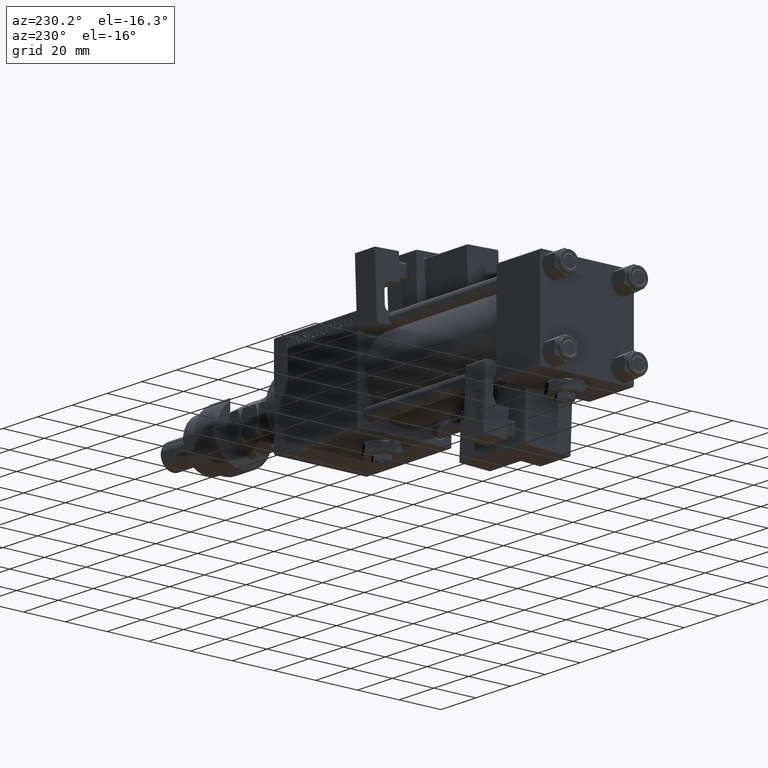
[diagram: clean part render]
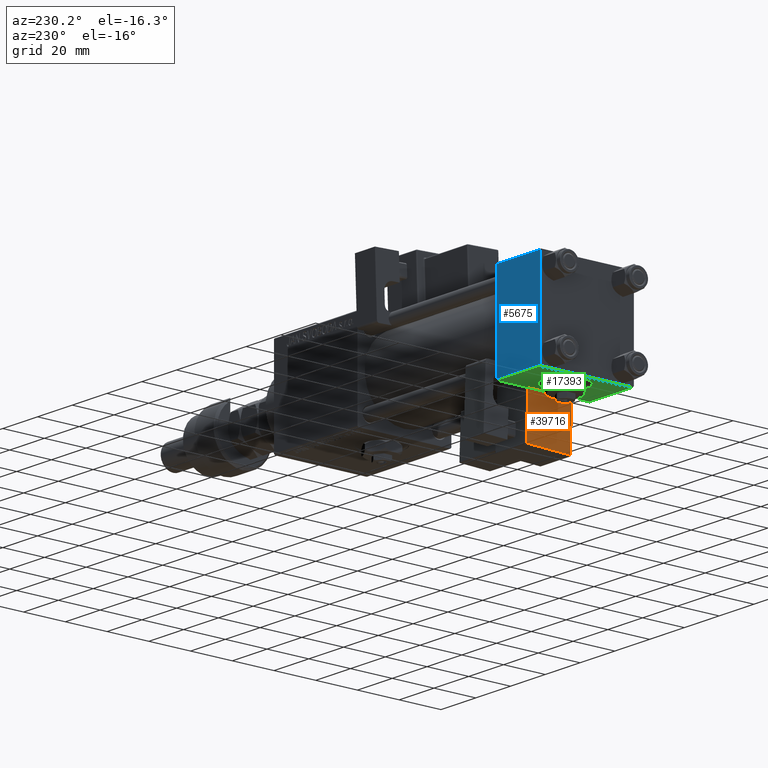
[diagram: same view with three faces highlighted in distinct colors, each labeled with its STEP entity id]
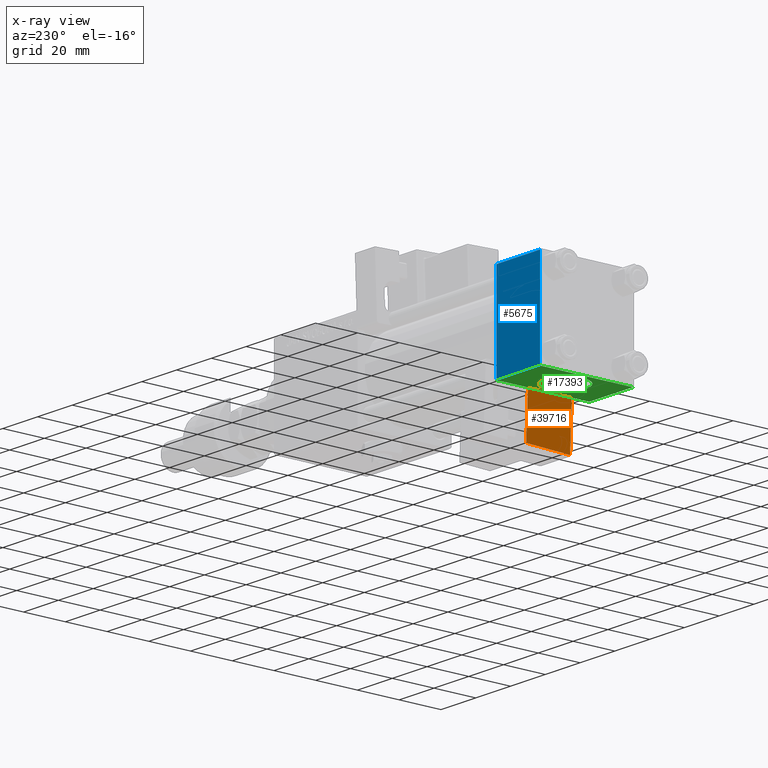
[diagram: x-ray of the same camera — body ghosted, the three highlighted faces saturated]
A machine part, auxiliary view with three faces highlighted in distinct colors.
The next image is the same camera in x-ray (body ghosted, the three faces saturated) — at least one of them is partly hidden behind the body in this view.
Their STEP definitions:

[orange] entity #39716 — the highlighted planar face has unit normal (1, 0, -0).
#1591 = LINE ( 'NONE', #5942, #18917 ) ;
#2841 = LINE ( 'NONE', #17035, #31076 ) ;
#5104 = DIRECTION ( 'NONE',  ( -1.334402673828313093E-16, 0.000000000000000000, -1.000000000000000000 ) ) ;
#5665 = PLANE ( 'NONE',  #56036 ) ;
#5942 = CARTESIAN_POINT ( 'NONE',  ( -8.750000000000003553, -33.75000000000000000, -0.5000000000000004441 ) ) ;
#10857 = CARTESIAN_POINT ( 'NONE',  ( -8.750000000000000000, -33.25000000000000000, 24.50000000000000000 ) ) ;
#10898 = EDGE_CURVE ( 'NONE', #25704, #35682, #2841, .T. ) ;
#11759 = CARTESIAN_POINT ( 'NONE',  ( -8.750000000000003553, -12.25000000000000000, -1.000000000000000888 ) ) ;
#14099 = DIRECTION ( 'NONE',  ( 1.000000000000000000, 0.000000000000000000, -1.334402673828313093E-16 ) ) ;
#15179 = EDGE_CURVE ( 'NONE', #35682, #30891, #51815, .T. ) ;
#16450 = FACE_OUTER_BOUND ( 'NONE', #25940, .T. ) ;
#17035 = CARTESIAN_POINT ( 'NONE',  ( -8.750000000000000000, -33.25000000000000000, 25.00000000000000000 ) ) ;
#17867 = CARTESIAN_POINT ( 'NONE',  ( -8.750000000000000000, -33.75000000000000000, 25.00000000000000000 ) ) ;
#18160 = CARTESIAN_POINT ( 'NONE',  ( -8.750000000000003553, -12.25000000000000000, -0.5000000000000001110 ) ) ;
#18194 = ORIENTED_EDGE ( 'NONE', *, *, #15179, .T. ) ;
#18917 = VECTOR ( 'NONE', #54453, 1000.000000000000000 ) ;
#21675 = DIRECTION ( 'NONE',  ( 1.334402673828313093E-16, -0.000000000000000000, 1.000000000000000000 ) ) ;
#25704 = VERTEX_POINT ( 'NONE', #48489 ) ;
#25940 = EDGE_LOOP ( 'NONE', ( #34392, #18194, #27957, #34694 ) ) ;
#27957 = ORIENTED_EDGE ( 'NONE', *, *, #47444, .T. ) ;
#29479 = DIRECTION ( 'NONE',  ( -1.334402673828313093E-16, 0.000000000000000000, -1.000000000000000000 ) ) ;
#30891 = VERTEX_POINT ( 'NONE', #54832 ) ;
#31076 = VECTOR ( 'NONE', #21675, 1000.000000000000000 ) ;
#32566 = VECTOR ( 'NONE', #29479, 1000.000000000000000 ) ;
#34392 = ORIENTED_EDGE ( 'NONE', *, *, #10898, .T. ) ;
#34694 = ORIENTED_EDGE ( 'NONE', *, *, #53986, .T. ) ;
#35682 = VERTEX_POINT ( 'NONE', #10857 ) ;
#37892 = CARTESIAN_POINT ( 'NONE',  ( -8.750000000000000000, -33.75000000000000000, 24.50000000000000000 ) ) ;
#39716 = ADVANCED_FACE ( 'NONE', ( #16450 ), #5665, .F. ) ;
#47177 = DIRECTION ( 'NONE',  ( 0.000000000000000000, 1.000000000000000000, 0.000000000000000000 ) ) ;
#47444 = EDGE_CURVE ( 'NONE', #30891, #51419, #55917, .T. ) ;
#48489 = CARTESIAN_POINT ( 'NONE',  ( -8.750000000000003553, -33.25000000000000000, -0.5000000000000001110 ) ) ;
#51419 = VERTEX_POINT ( 'NONE', #18160 ) ;
#51815 = LINE ( 'NONE', #37892, #52102 ) ;
#52102 = VECTOR ( 'NONE', #47177, 1000.000000000000000 ) ;
#53986 = EDGE_CURVE ( 'NONE', #51419, #25704, #1591, .T. ) ;
#54453 = DIRECTION ( 'NONE',  ( -0.000000000000000000, -1.000000000000000000, -0.000000000000000000 ) ) ;
#54832 = CARTESIAN_POINT ( 'NONE',  ( -8.750000000000000000, -12.25000000000000000, 24.50000000000000000 ) ) ;
#55917 = LINE ( 'NONE', #11759, #32566 ) ;
#56036 = AXIS2_PLACEMENT_3D ( 'NONE', #17867, #14099, #5104 ) ;

[blue] entity #5675 — the highlighted planar face has unit normal (0, 1, 0).
#1071 = EDGE_CURVE ( 'NONE', #44321, #34266, #18004, .T. ) ;
#1455 = FACE_OUTER_BOUND ( 'NONE', #33470, .T. ) ;
#5675 = ADVANCED_FACE ( 'NONE', ( #1455 ), #11307, .T. ) ;
#7022 = LINE ( 'NONE', #51156, #22232 ) ;
#11307 = PLANE ( 'NONE',  #55018 ) ;
#12200 = CARTESIAN_POINT ( 'NONE',  ( 25.00000000000000000, 22.50000000000000000, 21.99999999999999645 ) ) ;
#14797 = CARTESIAN_POINT ( 'NONE',  ( 25.00000000000000000, 22.50000000000000000, -21.99999999999998224 ) ) ;
#14817 = VECTOR ( 'NONE', #52577, 1000.000000000000000 ) ;
#15666 = CARTESIAN_POINT ( 'NONE',  ( 25.00000000000000000, 22.50000000000000000, 22.50000000000000355 ) ) ;
#17300 = LINE ( 'NONE', #35018, #43176 ) ;
#18004 = LINE ( 'NONE', #14797, #24329 ) ;
#19258 = EDGE_CURVE ( 'NONE', #26139, #44321, #17300, .T. ) ;
#22232 = VECTOR ( 'NONE', #37527, 1000.000000000000000 ) ;
#24329 = VECTOR ( 'NONE', #27296, 1000.000000000000000 ) ;
#24457 = ORIENTED_EDGE ( 'NONE', *, *, #19258, .T. ) ;
#26139 = VERTEX_POINT ( 'NONE', #36495 ) ;
#27296 = DIRECTION ( 'NONE',  ( -1.000000000000000000, 0.000000000000000000, 0.000000000000000000 ) ) ;
#27842 = EDGE_CURVE ( 'NONE', #52158, #26139, #51988, .T. ) ;
#28739 = DIRECTION ( 'NONE',  ( 0.000000000000000000, -0.000000000000000000, 1.000000000000000000 ) ) ;
#32227 = DIRECTION ( 'NONE',  ( -0.000000000000000000, 1.000000000000000000, 0.000000000000000000 ) ) ;
#33470 = EDGE_LOOP ( 'NONE', ( #24457, #42286, #42845, #48323 ) ) ;
#34266 = VERTEX_POINT ( 'NONE', #40260 ) ;
#35018 = CARTESIAN_POINT ( 'NONE',  ( 25.00000000000000000, 22.50000000000000000, 22.50000000000000355 ) ) ;
#36495 = CARTESIAN_POINT ( 'NONE',  ( 25.00000000000000000, 22.50000000000000000, 21.99999999999999645 ) ) ;
#37527 = DIRECTION ( 'NONE',  ( 0.000000000000000000, 0.000000000000000000, -1.000000000000000000 ) ) ;
#38646 = CARTESIAN_POINT ( 'NONE',  ( 0.000000000000000000, 22.50000000000000000, 21.99999999999999645 ) ) ;
#40260 = CARTESIAN_POINT ( 'NONE',  ( 0.000000000000000000, 22.50000000000000000, -21.99999999999996803 ) ) ;
#42286 = ORIENTED_EDGE ( 'NONE', *, *, #1071, .T. ) ;
#42845 = ORIENTED_EDGE ( 'NONE', *, *, #44949, .F. ) ;
#42869 = CARTESIAN_POINT ( 'NONE',  ( 25.00000000000000000, 22.50000000000000000, -21.99999999999996803 ) ) ;
#43176 = VECTOR ( 'NONE', #44000, 1000.000000000000000 ) ;
#44000 = DIRECTION ( 'NONE',  ( 0.000000000000000000, 0.000000000000000000, -1.000000000000000000 ) ) ;
#44321 = VERTEX_POINT ( 'NONE', #42869 ) ;
#44949 = EDGE_CURVE ( 'NONE', #52158, #34266, #7022, .T. ) ;
#48323 = ORIENTED_EDGE ( 'NONE', *, *, #27842, .T. ) ;
#51156 = CARTESIAN_POINT ( 'NONE',  ( 0.000000000000000000, 22.50000000000000000, 22.50000000000000355 ) ) ;
#51988 = LINE ( 'NONE', #12200, #14817 ) ;
#52158 = VERTEX_POINT ( 'NONE', #38646 ) ;
#52577 = DIRECTION ( 'NONE',  ( 1.000000000000000000, 0.000000000000000000, 0.000000000000000000 ) ) ;
#55018 = AXIS2_PLACEMENT_3D ( 'NONE', #15666, #32227, #28739 ) ;

[green] entity #17393 — the highlighted planar face has unit normal (0, 0, -1).
#4913 = DIRECTION ( 'NONE',  ( 0.000000000000000000, 2.312964634635742957E-16, -1.000000000000000000 ) ) ;
#7515 = VERTEX_POINT ( 'NONE', #19763 ) ;
#7991 = AXIS2_PLACEMENT_3D ( 'NONE', #39477, #4913, #13907 ) ;
#9634 = DIRECTION ( 'NONE',  ( 1.000000000000000000, 0.000000000000000000, 0.000000000000000000 ) ) ;
#10676 = EDGE_CURVE ( 'NONE', #46498, #25712, #47325, .T. ) ;
#11137 = VECTOR ( 'NONE', #9634, 1000.000000000000000 ) ;
#13328 = DIRECTION ( 'NONE',  ( 0.000000000000000000, -1.000000000000000000, -2.312964634635742957E-16 ) ) ;
#13871 = CARTESIAN_POINT ( 'NONE',  ( 12.50000000000000355, -9.999999999999998224, -22.50000000000000000 ) ) ;
#13907 = DIRECTION ( 'NONE',  ( 0.000000000000000000, 1.000000000000000000, 2.312964634635742957E-16 ) ) ;
#14871 = DIRECTION ( 'NONE',  ( 0.000000000000000000, 1.000000000000000000, 0.000000000000000000 ) ) ;
#16911 = CIRCLE ( 'NONE', #41956, 10.00000000000000178 ) ;
#17393 = ADVANCED_FACE ( 'NONE', ( #44683, #53980 ), #57211, .T. ) ;
#17484 = CARTESIAN_POINT ( 'NONE',  ( 0.000000000000000000, -21.99999999999998579, -22.50000000000000711 ) ) ;
#17763 = LINE ( 'NONE', #53508, #11137 ) ;
#18559 = VERTEX_POINT ( 'NONE', #31150 ) ;
#19763 = CARTESIAN_POINT ( 'NONE',  ( 12.50000000000000178, 10.00000000000000533, -22.50000000000000000 ) ) ;
#20612 = EDGE_LOOP ( 'NONE', ( #51639, #24365, #45403, #32663 ) ) ;
#21794 = CARTESIAN_POINT ( 'NONE',  ( 0.000000000000000000, 22.50000000000000000, -22.49999999999999645 ) ) ;
#22762 = VERTEX_POINT ( 'NONE', #37646 ) ;
#23165 = CARTESIAN_POINT ( 'NONE',  ( 25.00000000000000000, 22.50000000000000000, -22.49999999999999645 ) ) ;
#23256 = LINE ( 'NONE', #17484, #24276 ) ;
#24276 = VECTOR ( 'NONE', #36064, 1000.000000000000000 ) ;
#24365 = ORIENTED_EDGE ( 'NONE', *, *, #42137, .T. ) ;
#25712 = VERTEX_POINT ( 'NONE', #26982 ) ;
#25840 = DIRECTION ( 'NONE',  ( 0.000000000000000000, -1.734723475976806848E-16, -1.000000000000000000 ) ) ;
#26982 = CARTESIAN_POINT ( 'NONE',  ( 25.00000000000000000, -21.99999999999997158, -22.50000000000000711 ) ) ;
#29223 = VERTEX_POINT ( 'NONE', #13871 ) ;
#30161 = VECTOR ( 'NONE', #13328, 1000.000000000000000 ) ;
#30371 = EDGE_CURVE ( 'NONE', #22762, #18559, #56403, .T. ) ;
#30801 = DIRECTION ( 'NONE',  ( 0.000000000000000000, -1.000000000000000000, -2.312964634635742957E-16 ) ) ;
#31113 = ORIENTED_EDGE ( 'NONE', *, *, #35435, .F. ) ;
#31150 = CARTESIAN_POINT ( 'NONE',  ( 0.000000000000000000, -21.99999999999997158, -22.50000000000000711 ) ) ;
#31624 = ORIENTED_EDGE ( 'NONE', *, *, #36552, .F. ) ;
#32003 = DIRECTION ( 'NONE',  ( 0.000000000000000000, -1.734723475976806848E-16, -1.000000000000000000 ) ) ;
#32663 = ORIENTED_EDGE ( 'NONE', *, *, #48754, .T. ) ;
#33586 = CIRCLE ( 'NONE', #52113, 10.00000000000000178 ) ;
#35415 = CARTESIAN_POINT ( 'NONE',  ( 12.50000000000000178, 3.566060716959379104E-15, -22.50000000000000000 ) ) ;
#35435 = EDGE_CURVE ( 'NONE', #29223, #7515, #33586, .T. ) ;
#36064 = DIRECTION ( 'NONE',  ( -1.000000000000000000, 0.000000000000000000, 0.000000000000000000 ) ) ;
#36552 = EDGE_CURVE ( 'NONE', #7515, #29223, #16911, .T. ) ;
#37646 = CARTESIAN_POINT ( 'NONE',  ( 0.000000000000000000, 21.99999999999999289, -22.49999999999999645 ) ) ;
#39477 = CARTESIAN_POINT ( 'NONE',  ( 25.00000000000000000, 22.50000000000000000, -22.49999999999999645 ) ) ;
#41572 = CARTESIAN_POINT ( 'NONE',  ( 12.50000000000000178, 3.566060716959379104E-15, -22.50000000000000000 ) ) ;
#41956 = AXIS2_PLACEMENT_3D ( 'NONE', #41572, #32003, #14871 ) ;
#42137 = EDGE_CURVE ( 'NONE', #22762, #46498, #17763, .T. ) ;
#44683 = FACE_BOUND ( 'NONE', #48238, .T. ) ;
#45403 = ORIENTED_EDGE ( 'NONE', *, *, #10676, .T. ) ;
#46309 = CARTESIAN_POINT ( 'NONE',  ( 25.00000000000000000, 21.99999999999999289, -22.49999999999999645 ) ) ;
#46498 = VERTEX_POINT ( 'NONE', #46309 ) ;
#47325 = LINE ( 'NONE', #23165, #30161 ) ;
#48147 = VECTOR ( 'NONE', #30801, 1000.000000000000000 ) ;
#48238 = EDGE_LOOP ( 'NONE', ( #31624, #31113 ) ) ;
#48754 = EDGE_CURVE ( 'NONE', #25712, #18559, #23256, .T. ) ;
#51639 = ORIENTED_EDGE ( 'NONE', *, *, #30371, .F. ) ;
#52113 = AXIS2_PLACEMENT_3D ( 'NONE', #35415, #25840, #53139 ) ;
#53139 = DIRECTION ( 'NONE',  ( 0.000000000000000000, 1.000000000000000000, 0.000000000000000000 ) ) ;
#53508 = CARTESIAN_POINT ( 'NONE',  ( 25.00000000000000000, 21.99999999999999289, -22.49999999999999645 ) ) ;
#53980 = FACE_OUTER_BOUND ( 'NONE', #20612, .T. ) ;
#56403 = LINE ( 'NONE', #21794, #48147 ) ;
#57211 = PLANE ( 'NONE',  #7991 ) ;